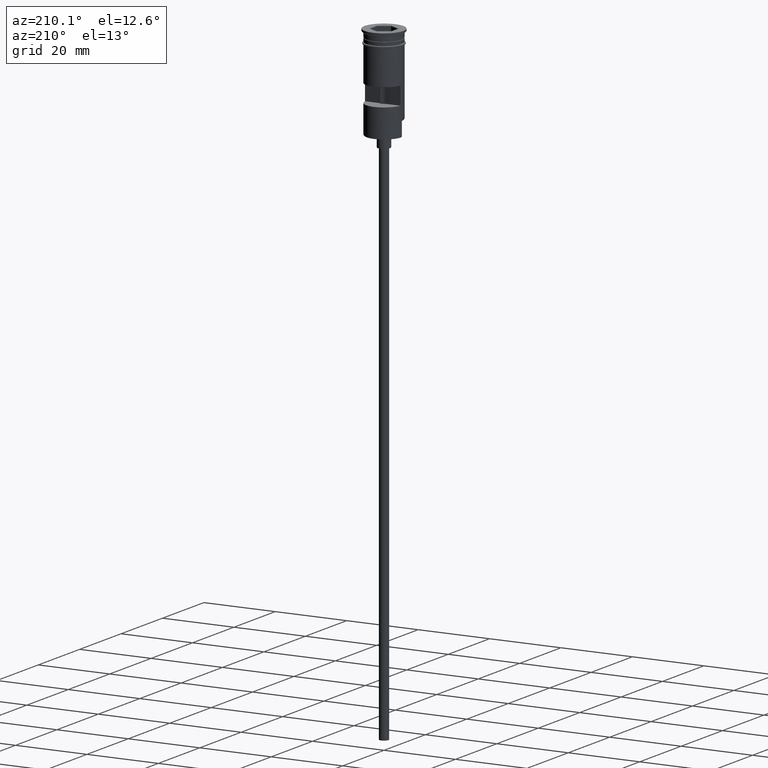
[diagram: clean part render]
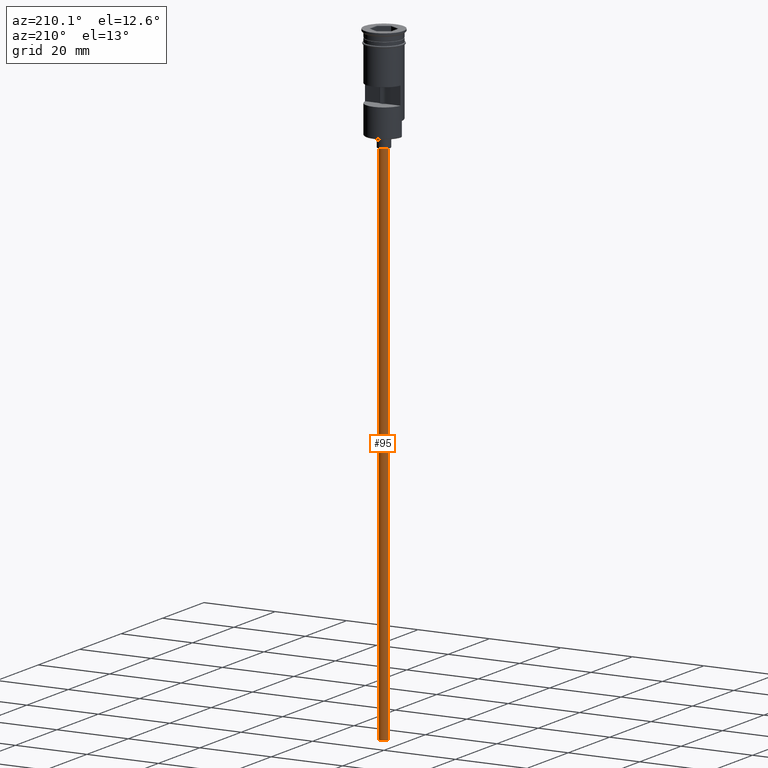
[diagram: same view with one face highlighted and labeled with its STEP entity id]
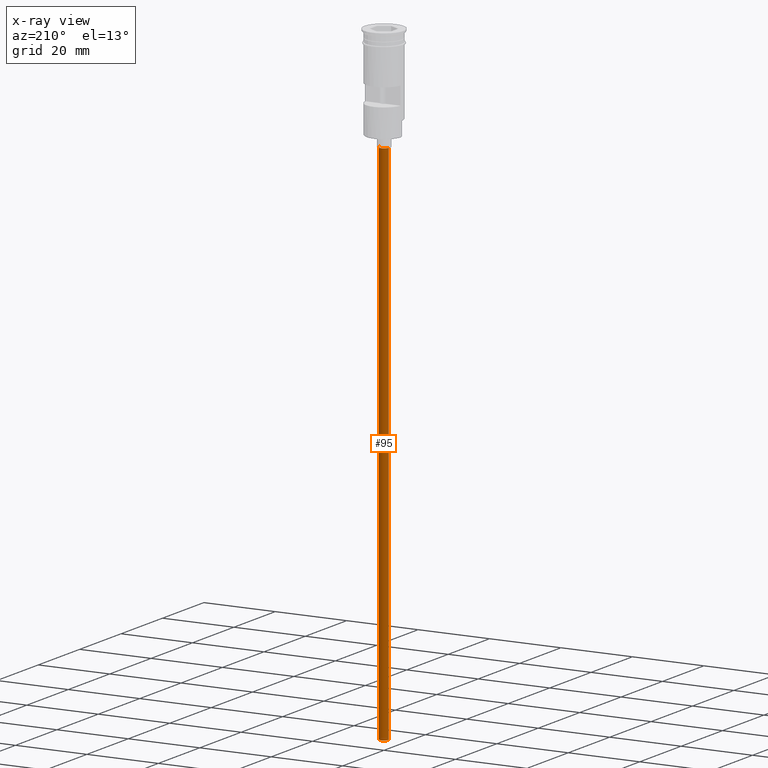
[diagram: x-ray of the same camera — body ghosted, the highlighted face saturated]
A machine part, auxiliary view. The second image highlights one B-rep face of the part: STEP entity #95.
The next image is the same camera in x-ray: the body ghosted, the highlighted face saturated — about 0% of this face is hidden behind the body in this view.
In plain terms, the highlighted cylindrical surface (edge-blend (fillet) strip) has radius 1.25 mm, axis along (-0, -0, 1).
Its self-contained STEP definition (entity closure, byte-faithful):
#81 = CARTESIAN_POINT ( 'NONE',  ( 1.250000000000000000, 0.000000000000000000, -176.5000000000000000 ) ) ;
#95 = ADVANCED_FACE ( 'NONE', ( #1208 ), #1097, .T. ) ;
#130 = VECTOR ( 'NONE', #257, 1000.000000000000000 ) ;
#174 = CARTESIAN_POINT ( 'NONE',  ( 0.000000000000000000, 0.000000000000000000, -176.5000000000000000 ) ) ;
#185 = CIRCLE ( 'NONE', #484, 1.250000000000000000 ) ;
#257 = DIRECTION ( 'NONE',  ( -0.000000000000000000, -0.000000000000000000, 1.000000000000000000 ) ) ;
#288 = EDGE_CURVE ( 'NONE', #359, #1232, #1516, .T. ) ;
#359 = VERTEX_POINT ( 'NONE', #81 ) ;
#407 = AXIS2_PLACEMENT_3D ( 'NONE', #910, #1392, #1234 ) ;
#472 = CARTESIAN_POINT ( 'NONE',  ( 1.250000000000000000, 0.000000000000000000, -29.50000000000000000 ) ) ;
#484 = AXIS2_PLACEMENT_3D ( 'NONE', #174, #1160, #555 ) ;
#490 = CARTESIAN_POINT ( 'NONE',  ( -1.250000000000000000, 1.530808498934191571E-16, -29.50000000000000000 ) ) ;
#555 = DIRECTION ( 'NONE',  ( -1.000000000000000000, 0.000000000000000000, 0.000000000000000000 ) ) ;
#567 = CARTESIAN_POINT ( 'NONE',  ( 1.250000000000000000, 0.000000000000000000, -176.5000000000000000 ) ) ;
#621 = ORIENTED_EDGE ( 'NONE', *, *, #288, .F. ) ;
#727 = VERTEX_POINT ( 'NONE', #490 ) ;
#826 = EDGE_LOOP ( 'NONE', ( #1604, #1233, #1116, #621 ) ) ;
#888 = CARTESIAN_POINT ( 'NONE',  ( -1.250000000000000000, 1.530808498934191571E-16, -176.5000000000000000 ) ) ;
#910 = CARTESIAN_POINT ( 'NONE',  ( 0.000000000000000000, 0.000000000000000000, -29.50000000000000000 ) ) ;
#912 = AXIS2_PLACEMENT_3D ( 'NONE', #1600, #1219, #994 ) ;
#924 = DIRECTION ( 'NONE',  ( -0.000000000000000000, -0.000000000000000000, 1.000000000000000000 ) ) ;
#992 = LINE ( 'NONE', #1109, #130 ) ;
#994 = DIRECTION ( 'NONE',  ( 1.000000000000000000, 0.000000000000000000, 0.000000000000000000 ) ) ;
#1097 = CYLINDRICAL_SURFACE ( 'NONE', #912, 1.250000000000000000 ) ;
#1109 = CARTESIAN_POINT ( 'NONE',  ( -1.250000000000000000, 1.530808498934191571E-16, -176.5000000000000000 ) ) ;
#1114 = VECTOR ( 'NONE', #924, 1000.000000000000000 ) ;
#1116 = ORIENTED_EDGE ( 'NONE', *, *, #1603, .T. ) ;
#1160 = DIRECTION ( 'NONE',  ( 0.000000000000000000, 0.000000000000000000, -1.000000000000000000 ) ) ;
#1166 = CIRCLE ( 'NONE', #407, 1.250000000000000000 ) ;
#1208 = FACE_OUTER_BOUND ( 'NONE', #826, .T. ) ;
#1219 = DIRECTION ( 'NONE',  ( -0.000000000000000000, -0.000000000000000000, 1.000000000000000000 ) ) ;
#1232 = VERTEX_POINT ( 'NONE', #472 ) ;
#1233 = ORIENTED_EDGE ( 'NONE', *, *, #1361, .T. ) ;
#1234 = DIRECTION ( 'NONE',  ( -1.000000000000000000, 0.000000000000000000, 0.000000000000000000 ) ) ;
#1361 = EDGE_CURVE ( 'NONE', #1565, #727, #992, .T. ) ;
#1392 = DIRECTION ( 'NONE',  ( 0.000000000000000000, 0.000000000000000000, -1.000000000000000000 ) ) ;
#1426 = EDGE_CURVE ( 'NONE', #1565, #359, #185, .T. ) ;
#1516 = LINE ( 'NONE', #567, #1114 ) ;
#1565 = VERTEX_POINT ( 'NONE', #888 ) ;
#1600 = CARTESIAN_POINT ( 'NONE',  ( 0.000000000000000000, 0.000000000000000000, -176.5000000000000000 ) ) ;
#1603 = EDGE_CURVE ( 'NONE', #727, #1232, #1166, .T. ) ;
#1604 = ORIENTED_EDGE ( 'NONE', *, *, #1426, .F. ) ;